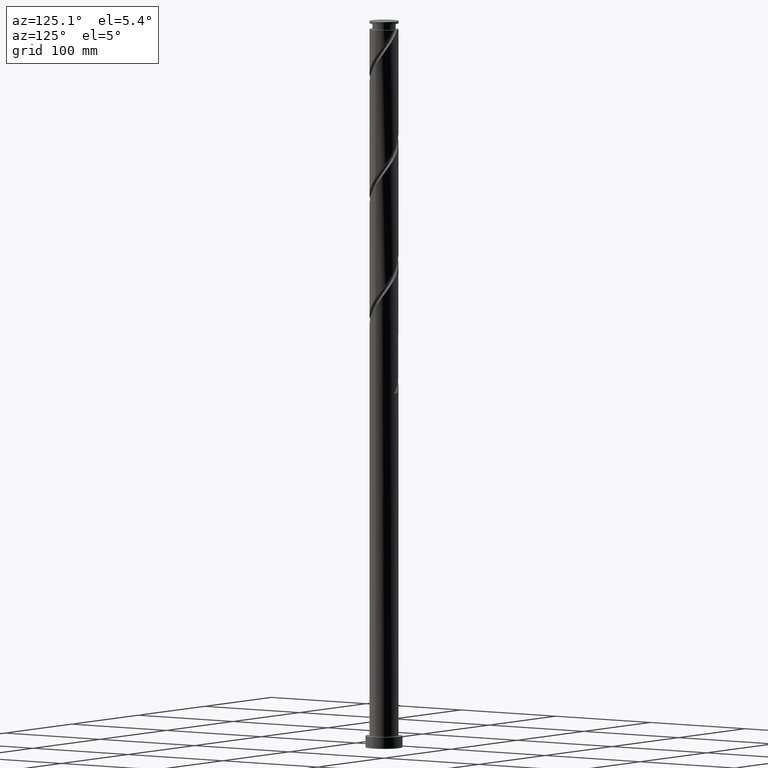
[diagram: clean part render]
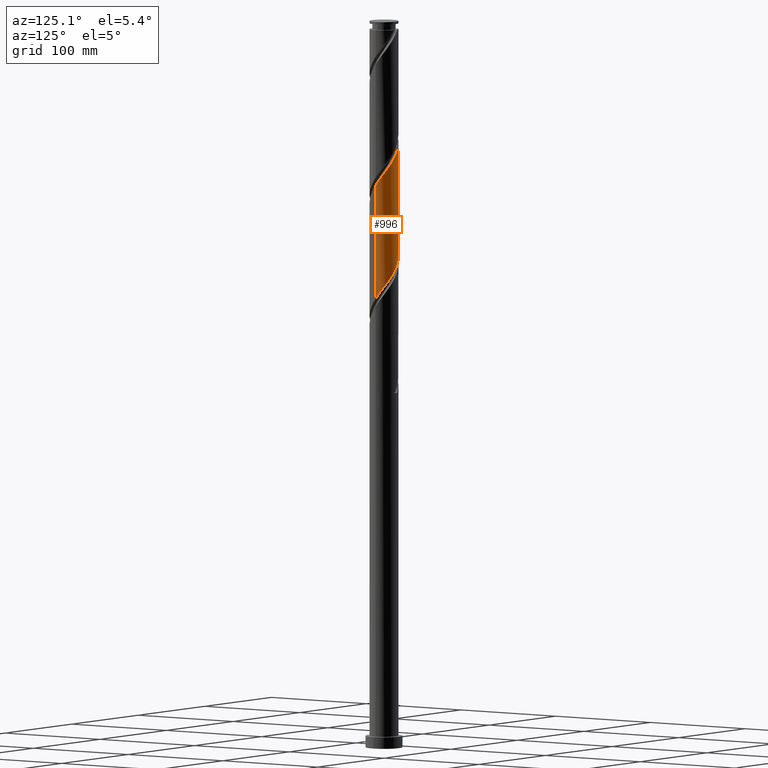
[diagram: same view with one face highlighted and labeled with its STEP entity id]
A machine part, auxiliary view. The second image highlights one B-rep face of the part: STEP entity #996.
In plain terms, the highlighted cylindrical surface (edge-blend (fillet) strip) has radius 12.5 mm, axis along (-0, -0, -1).
Its self-contained STEP definition (entity closure, byte-faithful):
#5 = CARTESIAN_POINT ( 'NONE',  ( -12.50000000000000000, 0.000000000000000000, 630.0000000000000000 ) ) ;
#54 = CARTESIAN_POINT ( 'NONE',  ( -11.27474576508964610, 5.397231506299652537, 533.3540082706060730 ) ) ;
#79 = CARTESIAN_POINT ( 'NONE',  ( -12.46309222167394282, 0.9598605492731354660, 539.5304788588413203 ) ) ;
#91 = CARTESIAN_POINT ( 'NONE',  ( -5.769494353270750331, 11.14919654296445550, 522.5451847411943618 ) ) ;
#102 = CARTESIAN_POINT ( 'NONE',  ( -9.856990158513969646, 7.686985430905852290, 431.4422435647238103 ) ) ;
#136 = CARTESIAN_POINT ( 'NONE',  ( 11.77487291607571329, 4.352472453254554452, 395.9275376823708257 ) ) ;
#141 = CYLINDRICAL_SURFACE ( 'NONE', #2119, 12.50000000000000000 ) ;
#157 = FACE_OUTER_BOUND ( 'NONE', #1939, .T. ) ;
#238 = CARTESIAN_POINT ( 'NONE',  ( -11.77487291607573106, 4.352472453254563334, 534.8981259176649701 ) ) ;
#239 = EDGE_CURVE ( 'NONE', #598, #1213, #1860, .T. ) ;
#252 = CARTESIAN_POINT ( 'NONE',  ( -12.50000000000002309, 0.4806398485959788580, 540.1712172732641193 ) ) ;
#280 = CARTESIAN_POINT ( 'NONE',  ( -7.408666546675603648, 10.13426409001871598, 426.8098906235471759 ) ) ;
#303 = CARTESIAN_POINT ( 'NONE',  ( -6.414510163309515178, 10.72865599060753539, 425.2657729764885062 ) ) ;
#344 = CARTESIAN_POINT ( 'NONE',  ( 0.000000000000000000, 0.000000000000000000, 630.0000000000000000 ) ) ;
#425 = CARTESIAN_POINT ( 'NONE',  ( 9.144686059876885764, 8.600370079965570014, 500.9275376823709962 ) ) ;
#437 = CARTESIAN_POINT ( 'NONE',  ( 3.622598259231422091, 12.01950209028172090, 411.3687141529589439 ) ) ;
#480 = CARTESIAN_POINT ( 'NONE',  ( 1.352338926301693611, 12.48049790971827733, 414.4569494470766813 ) ) ;
#513 = DIRECTION ( 'NONE',  ( -1.000000000000000000, 0.000000000000000000, 0.000000000000000000 ) ) ;
#537 = ORIENTED_EDGE ( 'NONE', *, *, #239, .F. ) ;
#544 = CARTESIAN_POINT ( 'NONE',  ( 10.56929425715108373, 6.773600781846147889, 497.8393023882532020 ) ) ;
#556 = CARTESIAN_POINT ( 'NONE',  ( -0.1941831197451120705, 12.49849162563253380, 514.8245965059003311 ) ) ;
#567 = CARTESIAN_POINT ( 'NONE',  ( -3.622598259231427420, 12.01950209028173866, 519.4569494470766813 ) ) ;
#579 = CARTESIAN_POINT ( 'NONE',  ( 9.856990158513978528, 7.686985430905863836, 499.3834200353120423 ) ) ;
#598 = VERTEX_POINT ( 'NONE', #620 ) ;
#600 = CARTESIAN_POINT ( 'NONE',  ( 12.46309222167392505, 0.9598605492731320243, 391.2951847411944186 ) ) ;
#620 = CARTESIAN_POINT ( 'NONE',  ( -12.50000000000002132, 1.374364395935878062E-15, 540.8146230253239537 ) ) ;
#625 = CARTESIAN_POINT ( 'NONE',  ( 2.487468592766561848, 12.25000000000000000, 412.9128318000180116 ) ) ;
#651 = CARTESIAN_POINT ( 'NONE',  ( 12.49999999999999822, 0.4806398485960293177, 390.6544463267716196 ) ) ;
#676 = CARTESIAN_POINT ( 'NONE',  ( 12.50000000000000000, -7.768146585724579434E-15, 390.0110405747118989 ) ) ;
#730 = CARTESIAN_POINT ( 'NONE',  ( 7.408666546675614306, 10.13426409001873729, 504.0157729764884493 ) ) ;
#741 = CARTESIAN_POINT ( 'NONE',  ( -9.407447597958748631, 8.312134403252507298, 528.7216553294294954 ) ) ;
#768 = CARTESIAN_POINT ( 'NONE',  ( -8.563682417406974778, 9.105676441308196090, 527.1775376823708257 ) ) ;
#779 = CARTESIAN_POINT ( 'NONE',  ( 5.769494353270745890, 11.14919654296443419, 408.2804788588413771 ) ) ;
#792 = CARTESIAN_POINT ( 'NONE',  ( 7.719917236855198261, 9.899218479363870671, 405.1922435647236398 ) ) ;
#804 = CARTESIAN_POINT ( 'NONE',  ( -12.42725830588523195, 1.346570086852729942, 440.7069494470767950 ) ) ;
#816 = CARTESIAN_POINT ( 'NONE',  ( -11.10163603606014249, 5.744882707492896756, 434.5304788588415477 ) ) ;
#828 = CARTESIAN_POINT ( 'NONE',  ( 12.42725830588524971, 1.346570086852729498, 490.1187141529589439 ) ) ;
#886 = CARTESIAN_POINT ( 'NONE',  ( -10.09103310603114956, 7.377062481298623631, 530.2657729764885062 ) ) ;
#952 = ORIENTED_EDGE ( 'NONE', *, *, #1831, .F. ) ;
#967 = CARTESIAN_POINT ( 'NONE',  ( -12.49999999999999822, 0.6752497959908265734, 441.6071213426992017 ) ) ;
#976 = CARTESIAN_POINT ( 'NONE',  ( 4.696046306251081326, 11.58434931662308109, 409.8245965059002174 ) ) ;
#978 = CARTESIAN_POINT ( 'NONE',  ( 12.50000000000002309, 6.812067005943047733E-15, 488.3146230253238969 ) ) ;
#985 = CARTESIAN_POINT ( 'NONE',  ( -12.30248021171700934, 2.498125154267604842, 439.1628318000178410 ) ) ;
#996 = ADVANCED_FACE ( 'NONE', ( #157 ), #141, .T. ) ;
#1047 = CARTESIAN_POINT ( 'NONE',  ( 11.63397781496923677, 4.716164633139658946, 494.7510670941356352 ) ) ;
#1057 = CARTESIAN_POINT ( 'NONE',  ( 11.10163603606015847, 5.744882707492903862, 496.2951847411944186 ) ) ;
#1091 = VERTEX_POINT ( 'NONE', #676 ) ;
#1108 = LINE ( 'NONE', #1990, #1138 ) ;
#1118 = CARTESIAN_POINT ( 'NONE',  ( -10.56929425715106063, 6.773600781846143448, 432.9863612117825937 ) ) ;
#1138 = VECTOR ( 'NONE', #1771, 1000.000000000000000 ) ;
#1165 =( BOUNDED_CURVE ( )  B_SPLINE_CURVE ( 2, ( #978, #1658, #828, #1497, #2171, #1047, #1057, #544, #579, #425, #1723, #730, #2096, #1747, #1218, #1264, #1563, #1895, #556, #2084, #2069, #567, #2058, #91, #1908, #1760, #768, #741, #886, #1251, #54, #238, #1553, #1415, #79, #252, #1712 ),
 .UNSPECIFIED., .F., .T. ) 
 B_SPLINE_CURVE_WITH_KNOTS ( ( 3, 2, 2, 2, 2, 2, 2, 2, 2, 2, 2, 2, 2, 2, 2, 2, 2, 2, 3 ),
 ( 0.4295293573162907719, 0.4338235294117647189, 0.4411764705882352811, 0.4485294117647058432, 0.4558823529411765163, 0.4632352941176470784, 0.4705882352941176405, 0.4779411764705882026, 0.4852941176470588758, 0.4926470588235294379, 0.5000000000000000000, 0.5073529411764705621, 0.5147058823529411242, 0.5220588235294116863, 0.5294117647058823595, 0.5367647058823529216, 0.5441176470588235947, 0.5514705882352941568, 0.5545293573162908274 ),
 .UNSPECIFIED. ) 
 CURVE ( )  GEOMETRIC_REPRESENTATION_ITEM ( )  RATIONAL_B_SPLINE_CURVE ( ( 0.9072066346052969354, 0.9068261157890642465, 0.9090909090909354839, 0.9052128875409666264, 0.9090909090909354839, 0.9052128875409666264, 0.9090909090909354839, 0.9052128875409666264, 0.9090909090909354839, 0.9052128875409666264, 0.9090909090909354839, 0.9052128875409666264, 0.9090909090909354839, 0.9052128875409666264, 0.9090909090909354839, 0.9052128875409666264, 0.9090909090909354839, 0.9052128875409666264, 0.9090909090909354839, 0.9052128875409666264, 0.9090909090909354839, 0.9052128875409666264, 0.9090909090909354839, 0.9052128875409666264, 0.9090909090909354839, 0.9052128875409666264, 0.9090909090909354839, 0.9052128875409666264, 0.9090909090909354839, 0.9052128875409666264, 0.9090909090909354839, 0.9052128875409666264, 0.9090909090909354839, 0.9052128875409666264, 0.9090909090909354839, 0.9074776808428377528, 0.9072066346052970465 ) ) 
 REPRESENTATION_ITEM ( '' )  );
#1213 = VERTEX_POINT ( 'NONE', #1714 ) ;
#1218 = CARTESIAN_POINT ( 'NONE',  ( 4.333905573088263630, 11.72464338406737738, 508.6481259176650838 ) ) ;
#1248 =( BOUNDED_CURVE ( )  B_SPLINE_CURVE ( 2, ( #1785, #967, #804, #985, #1966, #1811, #816, #1118, #102, #1321, #1288, #280, #303, #2144, #1482, #1941, #1439, #2129, #1276, #480, #625, #437, #976, #779, #1978, #792, #1634, #2108, #1470, #1645, #2155, #136, #1310, #2118, #600, #651, #1622 ),
 .UNSPECIFIED., .F., .T. ) 
 B_SPLINE_CURVE_WITH_KNOTS ( ( 3, 2, 2, 2, 2, 2, 2, 2, 2, 2, 2, 2, 2, 2, 2, 2, 2, 2, 3 ),
 ( 0.6795293573162906053, 0.6838235294117647189, 0.6911764705882352811, 0.6985294117647058432, 0.7058823529411765163, 0.7132352941176470784, 0.7205882352941176405, 0.7279411764705882026, 0.7352941176470588758, 0.7426470588235294379, 0.7500000000000000000, 0.7573529411764705621, 0.7647058823529411242, 0.7720588235294117974, 0.7794117647058823595, 0.7867647058823529216, 0.7941176470588234837, 0.8014705882352941568, 0.8045293573162904943 ),
 .UNSPECIFIED. ) 
 CURVE ( )  GEOMETRIC_REPRESENTATION_ITEM ( )  RATIONAL_B_SPLINE_CURVE ( ( 0.9072066346052909402, 0.9068261157890581403, 0.9090909090909291557, 0.9052128875409607422, 0.9090909090909291557, 0.9052128875409607422, 0.9090909090909291557, 0.9052128875409607422, 0.9090909090909291557, 0.9052128875409607422, 0.9090909090909291557, 0.9052128875409607422, 0.9090909090909291557, 0.9052128875409607422, 0.9090909090909291557, 0.9052128875409607422, 0.9090909090909291557, 0.9052128875409607422, 0.9090909090909291557, 0.9052128875409607422, 0.9090909090909291557, 0.9052128875409607422, 0.9090909090909291557, 0.9052128875409607422, 0.9090909090909291557, 0.9052128875409607422, 0.9090909090909291557, 0.9052128875409607422, 0.9090909090909291557, 0.9052128875409607422, 0.9090909090909291557, 0.9052128875409607422, 0.9090909090909291557, 0.9052128875409607422, 0.9090909090909291557, 0.9074776808428317576, 0.9072066346052909402 ) ) 
 REPRESENTATION_ITEM ( '' )  );
#1251 = CARTESIAN_POINT ( 'NONE',  ( -10.77461861410355759, 6.441990559344744405, 531.8098906235472896 ) ) ;
#1264 = CARTESIAN_POINT ( 'NONE',  ( 3.247457366233081899, 12.12623887693839642, 510.1922435647239240 ) ) ;
#1276 = CARTESIAN_POINT ( 'NONE',  ( 0.1941831197451102387, 12.49849162563251603, 416.0010670941354647 ) ) ;
#1288 = CARTESIAN_POINT ( 'NONE',  ( -8.276676303276238045, 9.367317084992135889, 428.3540082706061298 ) ) ;
#1298 = VERTEX_POINT ( 'NONE', #1555 ) ;
#1310 = CARTESIAN_POINT ( 'NONE',  ( 12.07451047968505975, 3.233604285619339880, 394.3834200353120991 ) ) ;
#1321 = CARTESIAN_POINT ( 'NONE',  ( -9.144686059876869777, 8.600370079965557579, 429.8981259176649132 ) ) ;
#1408 = ORIENTED_EDGE ( 'NONE', *, *, #1835, .T. ) ;
#1413 = VECTOR ( 'NONE', #1841, 1000.000000000000000 ) ;
#1415 = CARTESIAN_POINT ( 'NONE',  ( -12.37414804329442219, 2.114736117984124419, 537.9863612117825369 ) ) ;
#1439 = CARTESIAN_POINT ( 'NONE',  ( -2.105715026522275046, 12.32136210924256403, 419.0893023882533157 ) ) ;
#1470 = CARTESIAN_POINT ( 'NONE',  ( 10.09103310603113712, 7.377062481298612973, 400.5598906235473464 ) ) ;
#1480 = ORIENTED_EDGE ( 'NONE', *, *, #1697, .F. ) ;
#1482 = CARTESIAN_POINT ( 'NONE',  ( -4.333905573088250307, 11.72464338406736317, 422.1775376823708825 ) ) ;
#1497 = CARTESIAN_POINT ( 'NONE',  ( 12.30248021171703243, 2.498125154267603509, 491.6628318000178410 ) ) ;
#1553 = CARTESIAN_POINT ( 'NONE',  ( -12.07451047968507574, 3.233604285619342988, 536.4422435647237535 ) ) ;
#1555 = CARTESIAN_POINT ( 'NONE',  ( 12.50000000000002309, 6.812067005943047733E-15, 488.3146230253238969 ) ) ;
#1563 = CARTESIAN_POINT ( 'NONE',  ( 2.105715026522281708, 12.32136210924258179, 511.7363612117825369 ) ) ;
#1622 = CARTESIAN_POINT ( 'NONE',  ( 12.50000000000000000, -7.768146585724579434E-15, 390.0110405747118421 ) ) ;
#1634 = CARTESIAN_POINT ( 'NONE',  ( 8.563682417406971226, 9.105676441308178326, 403.6481259176650269 ) ) ;
#1645 = CARTESIAN_POINT ( 'NONE',  ( 10.77461861410353627, 6.441990559344733747, 399.0157729764885062 ) ) ;
#1658 = CARTESIAN_POINT ( 'NONE',  ( 12.50000000000001776, 0.6752497959908546621, 489.2185422573366509 ) ) ;
#1697 = EDGE_CURVE ( 'NONE', #1298, #598, #1165, .T. ) ;
#1712 = CARTESIAN_POINT ( 'NONE',  ( -12.50000000000002132, 1.374364395935878062E-15, 540.8146230253239537 ) ) ;
#1714 = CARTESIAN_POINT ( 'NONE',  ( -12.50000000000000000, 7.230351822097493687E-15, 442.5110405747118989 ) ) ;
#1723 = CARTESIAN_POINT ( 'NONE',  ( 8.276676303276255808, 9.367317084992148324, 502.4716553294297228 ) ) ;
#1747 = CARTESIAN_POINT ( 'NONE',  ( 5.420353779943436479, 11.32304789119637078, 507.1040082706060730 ) ) ;
#1760 = CARTESIAN_POINT ( 'NONE',  ( -7.719917236855212472, 9.899218479363886658, 525.6334200353120423 ) ) ;
#1771 = DIRECTION ( 'NONE',  ( -0.000000000000000000, -0.000000000000000000, -1.000000000000000000 ) ) ;
#1785 = CARTESIAN_POINT ( 'NONE',  ( -12.50000000000000000, 7.230351822097493687E-15, 442.5110405747118989 ) ) ;
#1811 = CARTESIAN_POINT ( 'NONE',  ( -11.63397781496921723, 4.716164633139650064, 436.0745965059003311 ) ) ;
#1831 = EDGE_CURVE ( 'NONE', #1213, #1091, #1248, .T. ) ;
#1835 = EDGE_CURVE ( 'NONE', #1298, #1091, #1108, .T. ) ;
#1841 = DIRECTION ( 'NONE',  ( -0.000000000000000000, -0.000000000000000000, -1.000000000000000000 ) ) ;
#1860 = LINE ( 'NONE', #5, #1413 ) ;
#1895 = CARTESIAN_POINT ( 'NONE',  ( 0.9639726868114796288, 12.51648534154676540, 513.2804788588413203 ) ) ;
#1908 = CARTESIAN_POINT ( 'NONE',  ( -6.744705795062978737, 10.52420751116417286, 524.0893023882531452 ) ) ;
#1939 = EDGE_LOOP ( 'NONE', ( #1480, #1408, #952, #537 ) ) ;
#1941 = CARTESIAN_POINT ( 'NONE',  ( -3.247457366233077458, 12.12623887693837688, 420.6334200353119854 ) ) ;
#1966 = CARTESIAN_POINT ( 'NONE',  ( -11.96822901334311418, 3.607144893703627453, 437.6187141529590576 ) ) ;
#1978 = CARTESIAN_POINT ( 'NONE',  ( 6.744705795062973408, 10.52420751116415509, 406.7363612117826506 ) ) ;
#1990 = CARTESIAN_POINT ( 'NONE',  ( 12.50000000000000000, 1.530808498934191521E-15, 630.0000000000000000 ) ) ;
#2058 = CARTESIAN_POINT ( 'NONE',  ( -4.696046306251090208, 11.58434931662309531, 521.0010670941354647 ) ) ;
#2069 = CARTESIAN_POINT ( 'NONE',  ( -2.487468592766556963, 12.25000000000001776, 517.9128318000178979 ) ) ;
#2084 = CARTESIAN_POINT ( 'NONE',  ( -1.352338926301694277, 12.48049790971830220, 516.3687141529590008 ) ) ;
#2096 = CARTESIAN_POINT ( 'NONE',  ( 6.414510163309526725, 10.72865599060755137, 505.5598906235473464 ) ) ;
#2108 = CARTESIAN_POINT ( 'NONE',  ( 9.407447597958730867, 8.312134403252487758, 402.1040082706060161 ) ) ;
#2118 = CARTESIAN_POINT ( 'NONE',  ( 12.37414804329440088, 2.114736117984113761, 392.8393023882531452 ) ) ;
#2119 = AXIS2_PLACEMENT_3D ( 'NONE', #344, #2173, #513 ) ;
#2129 = CARTESIAN_POINT ( 'NONE',  ( -0.9639726868114723013, 12.51648534154674586, 417.5451847411943618 ) ) ;
#2144 = CARTESIAN_POINT ( 'NONE',  ( -5.420353779943423156, 11.32304789119635302, 423.7216553294294954 ) ) ;
#2155 = CARTESIAN_POINT ( 'NONE',  ( 11.27474576508963366, 5.397231506299640102, 397.4716553294295522 ) ) ;
#2171 = CARTESIAN_POINT ( 'NONE',  ( 11.96822901334313016, 3.607144893703626121, 493.2069494470767950 ) ) ;
#2173 = DIRECTION ( 'NONE',  ( -0.000000000000000000, -0.000000000000000000, -1.000000000000000000 ) ) ;